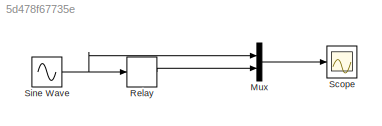
MODEL slx_5d478f67735e
KIND model
CONFIG AbsTol = auto
CONFIG EnableMultiTasking = off
CONFIG FixedStep = auto
CONFIG MaxStep = auto
CONFIG MinStep = auto
CONFIG RelTol = 1e-3
CONFIG SampleTimeConstraint = Unconstrained
CONFIG SolverName = VariableStepAuto
CONFIG StartTime = 0.0
CONFIG StopTime = 10
BLOCK [Mux] Mux
  DisplayOption = bar
  Inputs = 2
BLOCK [Relay] Relay
  OffOutputValue = 1
  OffSwitchValue = 95
  OnOutputValue = -1
  OnSwitchValue = 100
BLOCK [Scope] Scope
  Floating = off
  NumInputPorts = 1
  ScopeSpecificationString = Simulink.scopes.TimeScopeBlockCfg('CurrentConfiguration', extmgr.ConfigurationSet(extmgr.Configuration('Core','General UI',true),extmgr.Configuration('Core','Source UI',true),extmgr.Configuration('Sources','WiredSimulink',true),extmgr.Configuration('Visuals','Time Domain',true,'SerializedDisplays',{struct('MinYLimReal','-14.24861','MaxYLimReal','118.23747','YLabelReal','','MinYLimMag','0.00000','M...<+1376ch>
BLOCK [Sin] Sine Wave
  Amplitude = 10
  Bias = 95
  SampleTime = 0
LINE Mux:1 -> Scope:1
LINE Relay:1 -> Mux:2
NET Sine Wave:1 -> Mux:1, Relay:1
note: NET lines group one-source signal fan-out (src -> all destinations, sorted); 1:1 wires keep LINE
